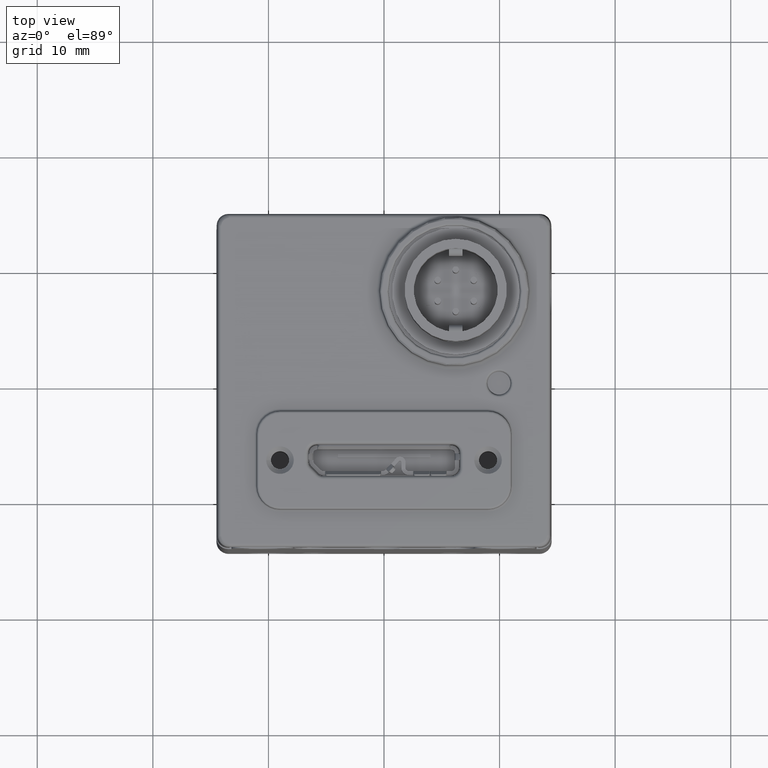
[diagram: clean part render]
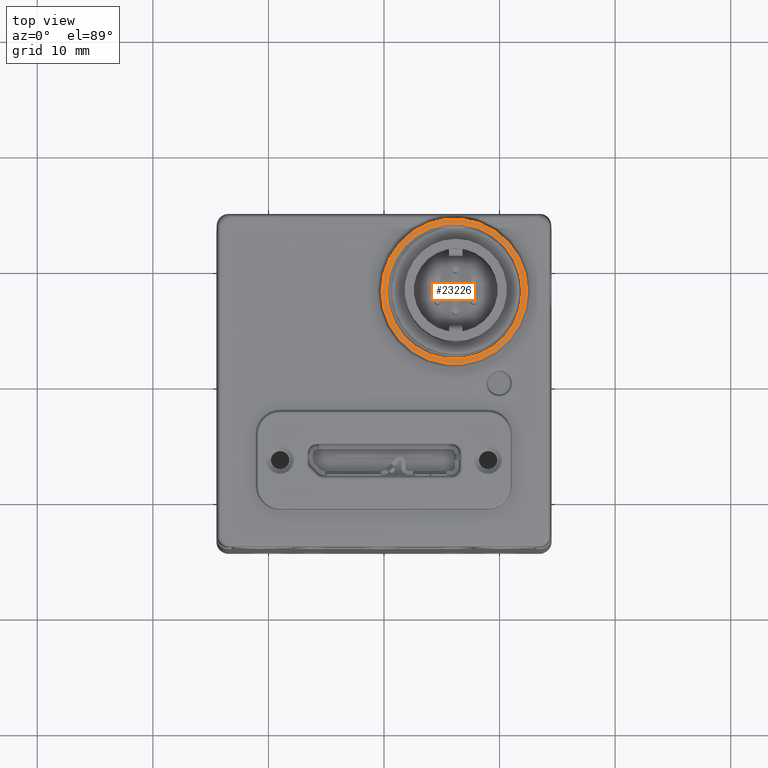
[diagram: same view with one face highlighted and labeled with its STEP entity id]
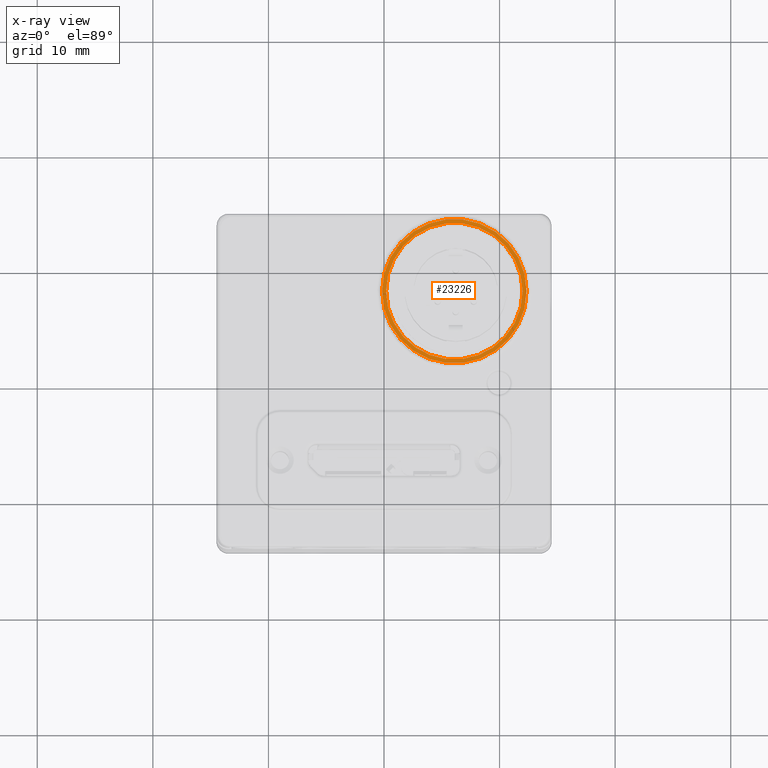
[diagram: x-ray of the same camera — body ghosted, the highlighted face saturated]
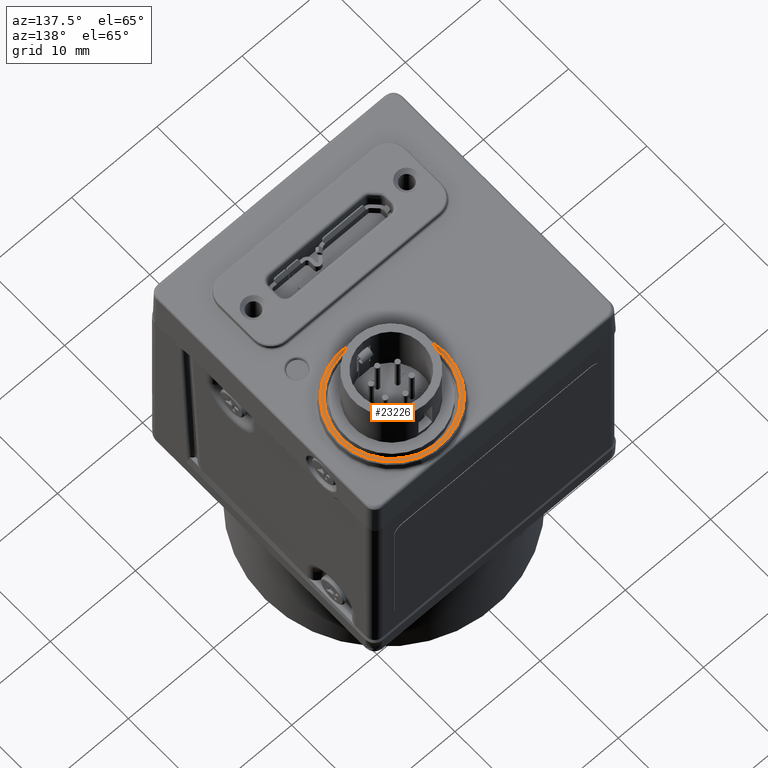
[diagram: same view with one face highlighted and labeled with its STEP entity id]
A machine part, top view. The second image highlights one B-rep face of the part: STEP entity #23226.
The next image is the same camera in x-ray: the body ghosted, the highlighted face saturated — about 0% of this face is hidden behind the body in this view.
A second angle (auxiliary view) of the same face is appended — the face is thin or edge-on in the first view.
In plain terms, the highlighted planar face has unit normal (0, 0, 1).
Its self-contained STEP definition (entity closure, byte-faithful):
#23195=CARTESIAN_POINT('',(0.174457073140825,7.709999999999719,42.499999999999943));
#23196=VERTEX_POINT('',#23195);
#23197=CARTESIAN_POINT('',(6.085000000266675,7.709999999999937,42.499999999999922));
#23198=DIRECTION('',(0.0,0.0,1.0));
#23199=DIRECTION('',(1.0,0.0,0.0));
#23200=AXIS2_PLACEMENT_3D('',#23197,#23198,#23199);
#23201=CIRCLE('',#23200,5.910542927125849);
#23202=EDGE_CURVE('',#23196,#23196,#23201,.T.);
#23207=CARTESIAN_POINT('',(6.085000000266675,7.709999999999937,42.499999999999922));
#23208=DIRECTION('',(0.0,0.0,1.0));
#23209=DIRECTION('',(1.0,0.0,0.0));
#23210=AXIS2_PLACEMENT_3D('',#23207,#23208,#23209);
#23211=PLANE('',#23210);
#23212=CARTESIAN_POINT('',(-0.164457072607478,7.709999999999710,42.499999999999943));
#23213=VERTEX_POINT('',#23212);
#23214=CARTESIAN_POINT('',(6.085000000266675,7.709999999999937,42.499999999999922));
#23215=DIRECTION('',(0.0,0.0,-1.0));
#23216=DIRECTION('',(1.0,0.0,0.0));
#23217=AXIS2_PLACEMENT_3D('',#23214,#23215,#23216);
#23218=CIRCLE('',#23217,6.249457072874152);
#23219=EDGE_CURVE('',#23213,#23213,#23218,.T.);
#23220=ORIENTED_EDGE('',*,*,#23219,.F.);
#23221=EDGE_LOOP('',(#23220));
#23222=FACE_OUTER_BOUND('',#23221,.T.);
#23223=ORIENTED_EDGE('',*,*,#23202,.F.);
#23224=EDGE_LOOP('',(#23223));
#23225=FACE_BOUND('',#23224,.T.);
#23226=ADVANCED_FACE('',(#23222,#23225),#23211,.T.);